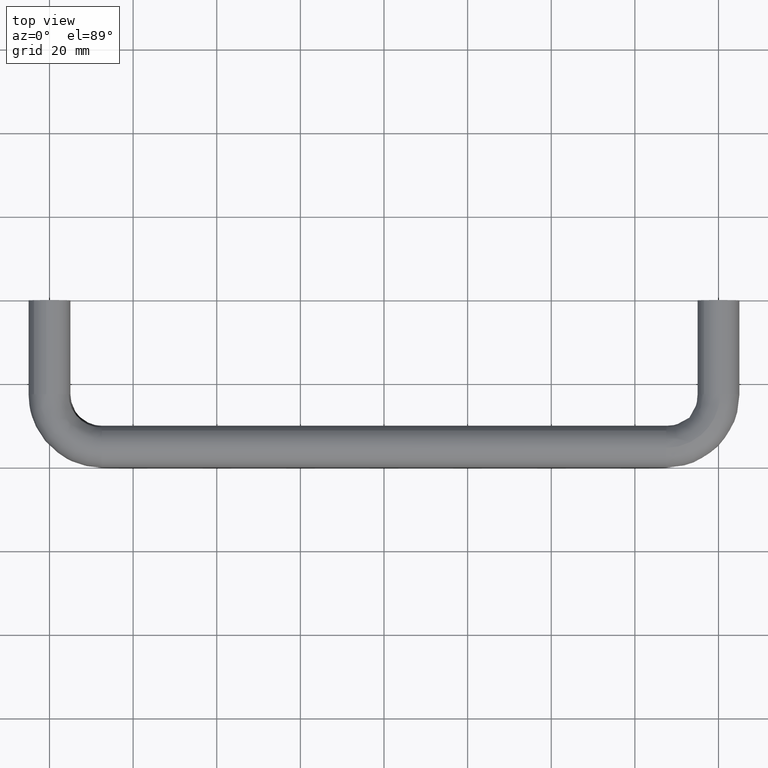
[diagram: clean part render]
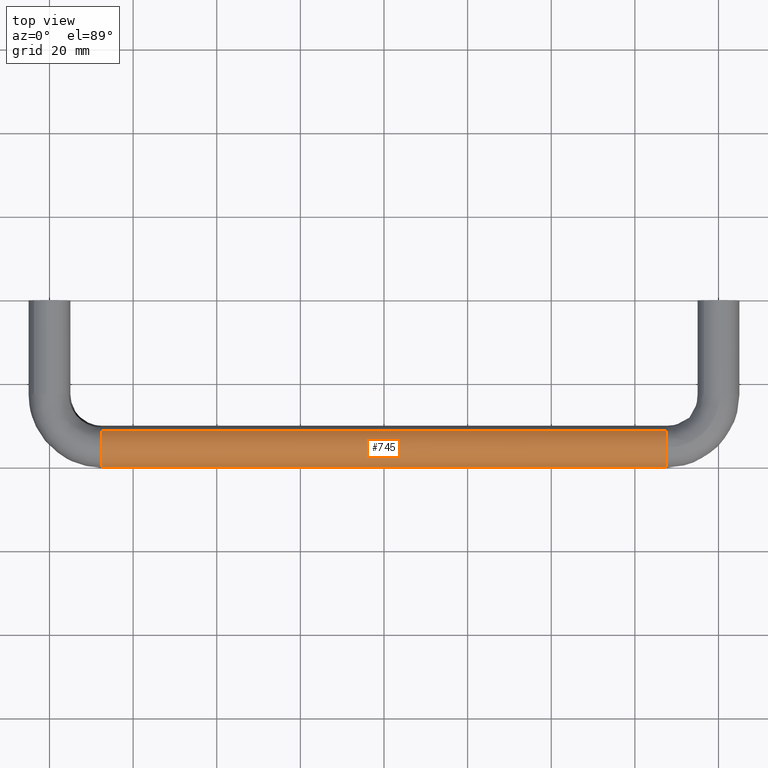
[diagram: same view with one face highlighted and labeled with its STEP entity id]
A machine part, top view. The second image highlights one B-rep face of the part: STEP entity #745.
In plain terms, the highlighted face is a freeform B-spline surface patch.
Its self-contained STEP definition (entity closure, byte-faithful):
#624=CARTESIAN_POINT('',(9.124999999932097,-31.134301527502714,3.172047033751499));
#625=CARTESIAN_POINT('',(9.124999999932095,-31.158329223448398,3.200458507274524));
#626=CARTESIAN_POINT('',(9.124999999932093,-31.274626083842424,3.337973364186448));
#627=CARTESIAN_POINT('',(9.124999999932093,-31.373128144938558,3.441772878468769));
#628=CARTESIAN_POINT('',(9.124999999932093,-34.814901023407330,7.068644733530205));
#629=CARTESIAN_POINT('',(9.124999999932093,-38.441772878468768,3.626871855061437));
#630=CARTESIAN_POINT('',(9.124999999932093,-42.068644733530206,0.185098976592668));
#631=CARTESIAN_POINT('',(9.124999999932097,-38.602122203160221,-3.467853569749915));
#632=CARTESIAN_POINT('',(9.124999999932090,-38.577519551696867,-3.493779354891164));
#633=CARTESIAN_POINT('',(150.959375002785690,-31.134301527502689,3.172047033751499));
#634=CARTESIAN_POINT('',(150.959375002785720,-31.158329223448384,3.200458507274524));
#635=CARTESIAN_POINT('',(150.959375002785720,-31.274626083842413,3.337973364186448));
#636=CARTESIAN_POINT('',(150.959375002785690,-31.373128144938551,3.441772878468769));
#637=CARTESIAN_POINT('',(150.959375002785750,-34.814901023407316,7.068644733530205));
#638=CARTESIAN_POINT('',(150.959375002785690,-38.441772878468747,3.626871855061437));
#639=CARTESIAN_POINT('',(150.959375002785750,-42.068644733530192,0.185098976592668));
#640=CARTESIAN_POINT('',(150.959375002785780,-38.602122203160214,-3.467853569749915));
#641=CARTESIAN_POINT('',(150.959375002785690,-38.577519551696859,-3.493779354891164));
#649=(BOUNDED_SURFACE()B_SPLINE_SURFACE(2,1,((#624,#633),(#625,#634),(#626,#635),(#627,#636),(#628,#637),(#629,#638),(#630,#639),(#631,#640),(#632,#641)),.UNSPECIFIED.,.F.,.F.,.U.)B_SPLINE_SURFACE_WITH_KNOTS((3,1,2,2,1,3),(2,2),(0.0,0.084508292774073,0.415879142672549,8.700150390134448,16.984421637596348,17.068920665394639),(0.0,141.834375002853700),.UNSPECIFIED.)GEOMETRIC_REPRESENTATION_ITEM()RATIONAL_B_SPLINE_SURFACE(((0.972008213201519,0.972008213201519),(0.974757006998323,0.974757006998323),(0.988284271247462,0.988284271247462),(1.0,1.0),(0.707106781186548,0.707106781186548),(1.0,1.0),(0.707106781186548,0.707106781186548),(1.002987491777992,1.002987491777992),(1.005974983555985,1.005974983555985)))REPRESENTATION_ITEM('')SURFACE());
#650=CARTESIAN_POINT('',(147.500000000000000,-31.182221785298410,3.228710191911005));
#651=VERTEX_POINT('',#650);
#652=CARTESIAN_POINT('',(147.500000002716090,-35.348666267987262,4.987828368495434));
#653=VERTEX_POINT('',#652);
#654=CARTESIAN_POINT('',(147.500000000000030,-31.182221785298420,3.228710191911005));
#655=CARTESIAN_POINT('',(147.500000000000030,-32.680208607630043,5.0));
#656=CARTESIAN_POINT('',(147.500000000000000,-35.0,5.0));
#657=CARTESIAN_POINT('',(147.500000000000060,-35.174545589520619,5.0));
#658=CARTESIAN_POINT('',(147.500000002716060,-35.348666267987262,4.987828368495434));
#666=(BOUNDED_CURVE()B_SPLINE_CURVE(2,(#654,#655,#656,#657,#658),.UNSPECIFIED.,.F.,.U.)B_SPLINE_CURVE_WITH_KNOTS((3,2,3),(0.612408089723808,0.750000000000000,0.762166314162062),.UNSPECIFIED.)CURVE()GEOMETRIC_REPRESENTATION_ITEM()RATIONAL_B_SPLINE_CURVE((0.855039471779534,0.838801050066057,1.0,0.985746276335912,0.972879874912435))REPRESENTATION_ITEM(''));
#667=EDGE_CURVE('',#651,#653,#666,.T.);
#668=ORIENTED_EDGE('',*,*,#667,.F.);
#669=CARTESIAN_POINT('',(12.500000000006970,-31.182216886848611,3.228704399729181));
#670=VERTEX_POINT('',#669);
#671=CARTESIAN_POINT('',(12.500000000006970,-31.182216886848611,3.228704399729181));
#672=CARTESIAN_POINT('',(147.500000000000000,-31.182221785298410,3.228710191911005));
#673=QUASI_UNIFORM_CURVE('',1,(#671,#672),.UNSPECIFIED.,.F.,.U.);
#674=EDGE_CURVE('',#670,#651,#673,.T.);
#675=ORIENTED_EDGE('',*,*,#674,.F.);
#676=CARTESIAN_POINT('',(12.500000000000000,-40.0,0.0));
#677=VERTEX_POINT('',#676);
#678=CARTESIAN_POINT('',(12.500000000006976,-31.182216886848611,3.228704399729182));
#679=CARTESIAN_POINT('',(12.500000000000004,-32.680203998306268,5.0));
#680=CARTESIAN_POINT('',(12.500000000000000,-35.0,5.0));
#681=CARTESIAN_POINT('',(12.500000000000000,-39.999999999999993,5.000000000000001));
#682=CARTESIAN_POINT('',(12.500000000000000,-40.0,0.0));
#690=(BOUNDED_CURVE()B_SPLINE_CURVE(2,(#678,#679,#680,#681,#682),.UNSPECIFIED.,.F.,.U.)B_SPLINE_CURVE_WITH_KNOTS((3,2,3),(0.612407860404824,0.750000000000000,1.0),.UNSPECIFIED.)CURVE()GEOMETRIC_REPRESENTATION_ITEM()RATIONAL_B_SPLINE_CURVE((0.855039525907895,0.838800781402156,1.0,0.707106781186548,1.0))REPRESENTATION_ITEM(''));
#691=EDGE_CURVE('',#670,#677,#690,.T.);
#692=ORIENTED_EDGE('',*,*,#691,.T.);
#693=CARTESIAN_POINT('',(12.500000000000000,-38.626872194420599,-3.441772520858758));
#694=VERTEX_POINT('',#693);
#695=CARTESIAN_POINT('',(12.500000000000000,-40.0,0.0));
#696=CARTESIAN_POINT('',(12.499999999999996,-40.0,-1.994797158397781));
#697=CARTESIAN_POINT('',(12.500000000000005,-38.626872194420599,-3.441772520858758));
#705=(BOUNDED_CURVE()B_SPLINE_CURVE(2,(#695,#696,#697),.UNSPECIFIED.,.F.,.U.)B_SPLINE_CURVE_WITH_KNOTS((3,3),(0.0,0.121049496898760),.UNSPECIFIED.)CURVE()GEOMETRIC_REPRESENTATION_ITEM()RATIONAL_B_SPLINE_CURVE((1.0,0.858181692870293,0.853699663573264))REPRESENTATION_ITEM(''));
#706=EDGE_CURVE('',#677,#694,#705,.T.);
#707=ORIENTED_EDGE('',*,*,#706,.T.);
#708=CARTESIAN_POINT('',(147.500000000000000,-38.626872198659441,-3.441772516391942));
#709=VERTEX_POINT('',#708);
#710=CARTESIAN_POINT('',(12.500000000000000,-38.626872194420599,-3.441772520858758));
#711=CARTESIAN_POINT('',(147.500000000000000,-38.626872198659441,-3.441772516391942));
#712=QUASI_UNIFORM_CURVE('',1,(#710,#711),.UNSPECIFIED.,.F.,.U.);
#713=EDGE_CURVE('',#694,#709,#712,.T.);
#714=ORIENTED_EDGE('',*,*,#713,.T.);
#715=CARTESIAN_POINT('',(147.500000000000000,-40.0,0.0));
#716=VERTEX_POINT('',#715);
#717=CARTESIAN_POINT('',(147.500000000000000,-40.0,0.0));
#718=CARTESIAN_POINT('',(147.500000000000000,-40.0,-1.994797151259686));
#719=CARTESIAN_POINT('',(147.499999999999970,-38.626872198659449,-3.441772516391941));
#727=(BOUNDED_CURVE()B_SPLINE_CURVE(2,(#717,#718,#719),.UNSPECIFIED.,.F.,.U.)B_SPLINE_CURVE_WITH_KNOTS((3,3),(0.0,0.121049496527031),.UNSPECIFIED.)CURVE()GEOMETRIC_REPRESENTATION_ITEM()RATIONAL_B_SPLINE_CURVE((1.0,0.858181693305800,0.853699663600792))REPRESENTATION_ITEM(''));
#728=EDGE_CURVE('',#716,#709,#727,.T.);
#729=ORIENTED_EDGE('',*,*,#728,.F.);
#730=CARTESIAN_POINT('',(147.500000002716090,-35.348666267987262,4.987828368495434));
#731=CARTESIAN_POINT('',(147.500000000000000,-40.0,4.662684217384968));
#732=CARTESIAN_POINT('',(147.500000000000000,-40.0,0.0));
#740=(BOUNDED_CURVE()B_SPLINE_CURVE(2,(#730,#731,#732),.UNSPECIFIED.,.F.,.U.)B_SPLINE_CURVE_WITH_KNOTS((3,3),(0.762166314162063,1.0),.UNSPECIFIED.)CURVE()GEOMETRIC_REPRESENTATION_ITEM()RATIONAL_B_SPLINE_CURVE((0.972879874912433,0.721360504850637,1.0))REPRESENTATION_ITEM(''));
#741=EDGE_CURVE('',#653,#716,#740,.T.);
#742=ORIENTED_EDGE('',*,*,#741,.F.);
#743=EDGE_LOOP('',(#668,#675,#692,#707,#714,#729,#742));
#744=FACE_OUTER_BOUND('',#743,.T.);
#745=ADVANCED_FACE('',(#744),#649,.T.);